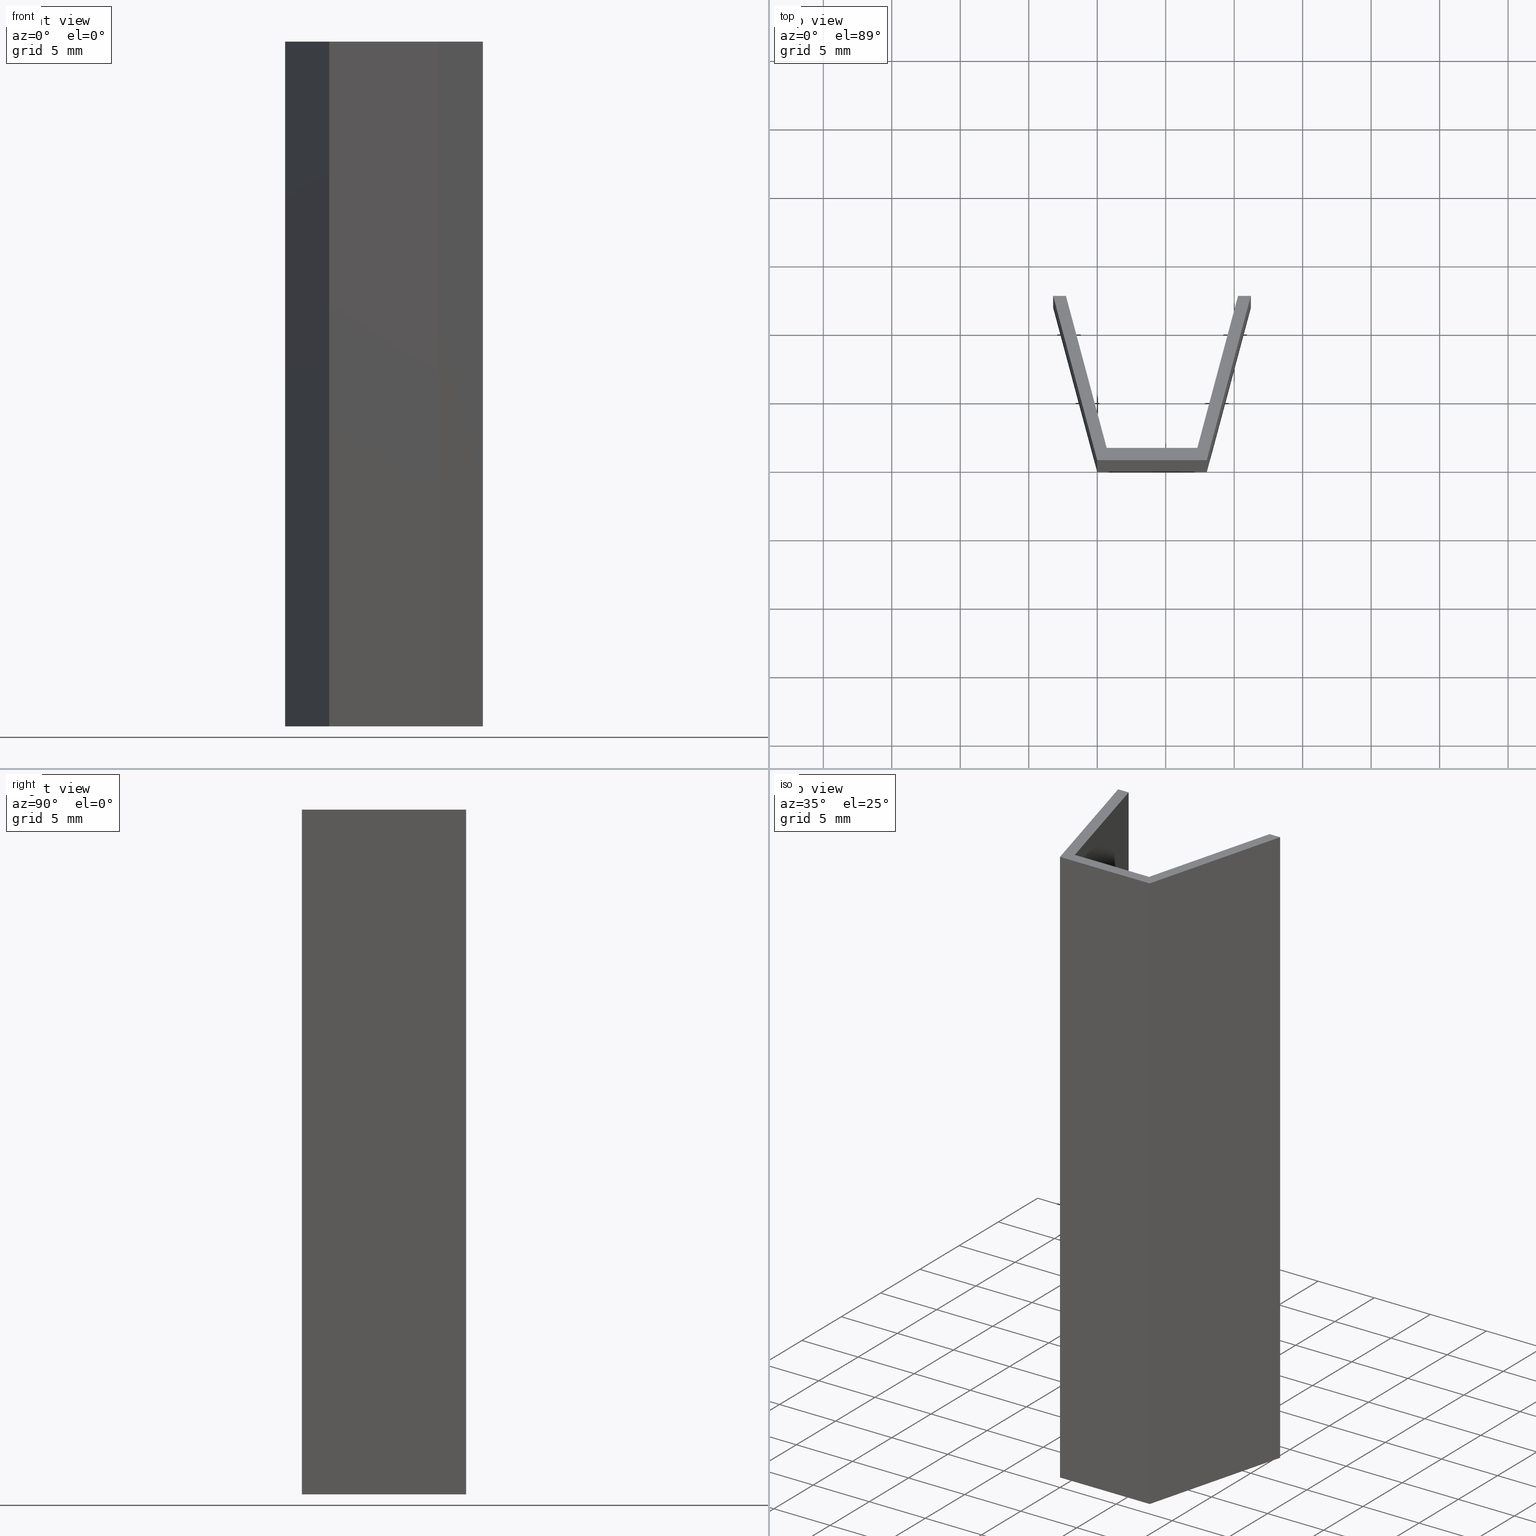
[diagram: canonical four-view strip — front | top / right | iso, engineering-drawing reading convention]
A machine part, canonical four-view strip (front | top / right | iso — engineering-drawing reading convention). The complete STEP part file that produces these views, byte-faithful:
ISO-10303-21;
HEADER;
FILE_DESCRIPTION (( 'STEP AP203' ),
    '1' );
FILE_NAME ('B39-55.STEP',
    '2018-03-28T14:56:30',
    ( 'User2' ),
    ( '' ),
    'SwSTEP 2.0',
    'SolidWorks 2007',
    '' );
FILE_SCHEMA (( 'CONFIG_CONTROL_DESIGN' ));
ENDSEC;

DATA;
#1 = EDGE_CURVE ( 'NONE', #43, #45, #317, .T. ) ;
#2 = EDGE_CURVE ( 'NONE', #29, #44, #319, .T. ) ;
#3 = EDGE_CURVE ( 'NONE', #45, #29, #321, .T. ) ;
#4 = EDGE_CURVE ( 'NONE', #27, #43, #48, .T. ) ;
#5 = EDGE_CURVE ( 'NONE', #43, #30, #50, .T. ) ;
#6 = EDGE_CURVE ( 'NONE', #25, #27, #52, .T. ) ;
#7 = EDGE_CURVE ( 'NONE', #30, #29, #54, .T. ) ;
#8 = FACE_OUTER_BOUND ( 'NONE', #302, .T. ) ;
#9 = FACE_OUTER_BOUND ( 'NONE', #281, .T. ) ;
#10 = FACE_OUTER_BOUND ( 'NONE', #125, .T. ) ;
#11 = FACE_OUTER_BOUND ( 'NONE', #292, .T. ) ;
#12 = LINE ( 'NONE', #215, #13 ) ;
#13 = VECTOR ( 'NONE', #226, 1000.000000000000000 ) ;
#14 = LINE ( 'NONE', #221, #15 ) ;
#15 = VECTOR ( 'NONE', #245, 1000.000000000000000 ) ;
#16 = LINE ( 'NONE', #229, #17 ) ;
#17 = VECTOR ( 'NONE', #224, 1000.000000000000000 ) ;
#18 = LINE ( 'NONE', #225, #19 ) ;
#19 = VECTOR ( 'NONE', #255, 1000.000000000000000 ) ;
#20 = LINE ( 'NONE', #249, #21 ) ;
#21 = VECTOR ( 'NONE', #217, 1000.000000000000100 ) ;
#22 = LINE ( 'NONE', #222, #161 ) ;
#23 = PRODUCT ( 'B39-55', 'B39-55', '', ( #71 ) ) ;
#24 = PERSON ( 'UNSPECIFIED', 'UNSPECIFIED', 'UNSPECIFIED', ('UNSPECIFIED'), ('UNSPECIFIED'), ('UNSPECIFIED') ) ;
#25 = VERTEX_POINT ( 'NONE', #148 ) ;
#26 = VERTEX_POINT ( 'NONE', #153 ) ;
#27 = VERTEX_POINT ( 'NONE', #134 ) ;
#28 = VERTEX_POINT ( 'NONE', #149 ) ;
#29 = VERTEX_POINT ( 'NONE', #150 ) ;
#30 = VERTEX_POINT ( 'NONE', #151 ) ;
#31 = CARTESIAN_POINT ( 'NONE',  ( 8.000000000000000000, -2.195599280053263200E-015, 0.0000000000000000000 ) ) ;
#32 = DIRECTION ( 'NONE',  ( 1.000000000000000000, -2.744499100066579100E-016, -0.0000000000000000000 ) ) ;
#33 = VERTEX_POINT ( 'NONE', #158 ) ;
#34 = VERTEX_POINT ( 'NONE', #143 ) ;
#35 = VERTEX_POINT ( 'NONE', #130 ) ;
#36 = VERTEX_POINT ( 'NONE', #135 ) ;
#37 = VERTEX_POINT ( 'NONE', #140 ) ;
#38 = CARTESIAN_POINT ( 'NONE',  ( 0.0000000000000000000, 0.0000000000000000000, 50.00000000000000000 ) ) ;
#39 = DIRECTION ( 'NONE',  ( -0.0000000000000000000, -0.0000000000000000000, -1.000000000000000000 ) ) ;
#40 = VERTEX_POINT ( 'NONE', #152 ) ;
#41 = DIRECTION ( 'NONE',  ( 0.2588190451025176900, 0.9659258262890690900, -0.0000000000000000000 ) ) ;
#42 = VERTEX_POINT ( 'NONE', #137 ) ;
#43 = VERTEX_POINT ( 'NONE', #138 ) ;
#44 = VERTEX_POINT ( 'NONE', #155 ) ;
#45 = VERTEX_POINT ( 'NONE', #136 ) ;
#46 = CARTESIAN_POINT ( 'NONE',  ( 11.21539030917343300, 12.00000000000000000, 0.0000000000000000000 ) ) ;
#47 = VECTOR ( 'NONE', #32, 1000.000000000000000 ) ;
#48 = LINE ( 'NONE', #160, #49 ) ;
#49 = VECTOR ( 'NONE', #159, 999.9999999999998900 ) ;
#50 = LINE ( 'NONE', #144, #51 ) ;
#51 = VECTOR ( 'NONE', #145, 1000.000000000000000 ) ;
#52 = LINE ( 'NONE', #142, #53 ) ;
#53 = VECTOR ( 'NONE', #126, 1000.000000000000000 ) ;
#54 = LINE ( 'NONE', #156, #55 ) ;
#55 = VECTOR ( 'NONE', #132, 1000.000000000000000 ) ;
#56 = FACE_OUTER_BOUND ( 'NONE', #295, .T. ) ;
#57 = FACE_OUTER_BOUND ( 'NONE', #181, .T. ) ;
#58 = FACE_OUTER_BOUND ( 'NONE', #296, .T. ) ;
#59 = FACE_OUTER_BOUND ( 'NONE', #297, .T. ) ;
#60 = FACE_OUTER_BOUND ( 'NONE', #294, .T. ) ;
#61 = FACE_OUTER_BOUND ( 'NONE', #293, .T. ) ;
#62 =( LENGTH_UNIT ( ) NAMED_UNIT ( * ) SI_UNIT ( .MILLI., .METRE. ) );
#63 = CARTESIAN_POINT ( 'NONE',  ( -3.215390309173439000, 12.00000000000000000, 0.0000000000000000000 ) ) ;
#64 = APPLICATION_CONTEXT ( 'configuration controlled 3d designs of mechanical parts and assemblies' ) ;
#65 =( NAMED_UNIT ( * ) PLANE_ANGLE_UNIT ( ) SI_UNIT ( $, .RADIAN. ) );
#66 =( NAMED_UNIT ( * ) SI_UNIT ( $, .STERADIAN. ) SOLID_ANGLE_UNIT ( ) );
#67 = PERSON_AND_ORGANIZATION_ROLE ( 'design_owner' ) ;
#68 = APPLICATION_PROTOCOL_DEFINITION ( 'international standard', 'config_control_design', 1994, #64 ) ;
#69 = CARTESIAN_POINT ( 'NONE',  ( -2.283641746804360800, 12.00000000000000000, 50.00000000000000000 ) ) ;
#70 = CARTESIAN_POINT ( 'NONE',  ( -2.283641746804360800, 12.00000000000000000, 0.0000000000000000000 ) ) ;
#71 = MECHANICAL_CONTEXT ( 'NONE', #84, 'mechanical' ) ;
#72 = APPLICATION_PROTOCOL_DEFINITION ( 'international standard', 'config_control_design', 1994, #84 ) ;
#73 = DIRECTION ( 'NONE',  ( -1.000000000000000000, 3.276123471175167400E-017, -0.0000000000000000000 ) ) ;
#74 = CARTESIAN_POINT ( 'NONE',  ( 0.6905942891810676900, 0.9000000000000000200, 50.00000000000000000 ) ) ;
#75 = DIRECTION ( 'NONE',  ( -0.0000000000000000000, -0.0000000000000000000, -1.000000000000000000 ) ) ;
#76 = CARTESIAN_POINT ( 'NONE',  ( -2.283641746804360800, 12.00000000000000000, 50.00000000000000000 ) ) ;
#77 = DIRECTION ( 'NONE',  ( -0.2588190451025180700, 0.9659258262890690900, -0.0000000000000000000 ) ) ;
#78 = DIRECTION ( 'NONE',  ( 0.0000000000000000000, 0.0000000000000000000, 1.000000000000000000 ) ) ;
#79 = DIRECTION ( 'NONE',  ( 1.000000000000000000, 0.0000000000000000000, 0.0000000000000000000 ) ) ;
#80 = CARTESIAN_POINT ( 'NONE',  ( 0.0000000000000000000, 0.0000000000000000000, 0.0000000000000000000 ) ) ;
#81 = DIRECTION ( 'NONE',  ( -0.2588190451025180700, 0.9659258262890690900, -0.0000000000000000000 ) ) ;
#82 = DIRECTION ( 'NONE',  ( -1.000000000000000000, 3.276123471175167400E-017, -0.0000000000000000000 ) ) ;
#83 = DIRECTION ( 'NONE',  ( -0.0000000000000000000, -0.0000000000000000000, -1.000000000000000000 ) ) ;
#84 = APPLICATION_CONTEXT ( 'configuration controlled 3d designs of mechanical parts and assemblies' ) ;
#85 = CARTESIAN_POINT ( 'NONE',  ( 0.6905942891810676900, 0.9000000000000000200, 0.0000000000000000000 ) ) ;
#86 = CARTESIAN_POINT ( 'NONE',  ( 0.0000000000000000000, 0.0000000000000000000, 0.0000000000000000000 ) ) ;
#87 = CARTESIAN_POINT ( 'NONE',  ( 0.6905942891810676900, 0.9000000000000000200, 50.00000000000000000 ) ) ;
#88 = DIRECTION ( 'NONE',  ( -1.000000000000000000, -0.0000000000000000000, -0.0000000000000000000 ) ) ;
#89 = CARTESIAN_POINT ( 'NONE',  ( -3.215390309173439000, 12.00000000000000000, 50.00000000000000000 ) ) ;
#90 = DIRECTION ( 'NONE',  ( -0.0000000000000000000, -0.0000000000000000000, -1.000000000000000000 ) ) ;
#91 = DIRECTION ( 'NONE',  ( 0.2588190451025183000, -0.9659258262890690900, -0.0000000000000000000 ) ) ;
#92 = ORIENTED_EDGE ( 'NONE', *, *, #347, .T. ) ;
#93 = ORIENTED_EDGE ( 'NONE', *, *, #356, .T. ) ;
#94 = ORIENTED_EDGE ( 'NONE', *, *, #358, .F. ) ;
#95 = ORIENTED_EDGE ( 'NONE', *, *, #357, .F. ) ;
#96 = ORIENTED_EDGE ( 'NONE', *, *, #354, .T. ) ;
#97 = ORIENTED_EDGE ( 'NONE', *, *, #359, .T. ) ;
#98 = ORIENTED_EDGE ( 'NONE', *, *, #360, .F. ) ;
#99 = ORIENTED_EDGE ( 'NONE', *, *, #361, .F. ) ;
#100 = ORIENTED_EDGE ( 'NONE', *, *, #358, .T. ) ;
#101 = ORIENTED_EDGE ( 'NONE', *, *, #363, .T. ) ;
#102 = PERSON_AND_ORGANIZATION_ROLE ( 'classification_officer' ) ;
#103 = DATE_TIME_ROLE ( 'creation_date' ) ;
#104 = DATE_TIME_ROLE ( 'classification_date' ) ;
#105 = APPROVAL_STATUS ( 'not_yet_approved' ) ;
#106 = SECURITY_CLASSIFICATION_LEVEL ( 'unclassified' ) ;
#107 = APPROVAL_STATUS ( 'not_yet_approved' ) ;
#108 = PERSON_AND_ORGANIZATION_ROLE ( 'design_supplier' ) ;
#109 = APPROVAL_ROLE ( '' ) ;
#110 = APPROVAL_STATUS ( 'not_yet_approved' ) ;
#111 = APPROVAL_ROLE ( '' ) ;
#112 = PERSON_AND_ORGANIZATION_ROLE ( 'creator' ) ;
#113 = PERSON_AND_ORGANIZATION_ROLE ( 'creator' ) ;
#114 = APPROVAL_ROLE ( '' ) ;
#115 = ORIENTED_EDGE ( 'NONE', *, *, #7, .T. ) ;
#116 = ORIENTED_EDGE ( 'NONE', *, *, #349, .F. ) ;
#117 = ORIENTED_EDGE ( 'NONE', *, *, #360, .T. ) ;
#118 = ORIENTED_EDGE ( 'NONE', *, *, #364, .T. ) ;
#119 = ORIENTED_EDGE ( 'NONE', *, *, #1, .F. ) ;
#120 = ORIENTED_EDGE ( 'NONE', *, *, #4, .F. ) ;
#121 = ORIENTED_EDGE ( 'NONE', *, *, #362, .T. ) ;
#122 = ORIENTED_EDGE ( 'NONE', *, *, #5, .T. ) ;
#123 = ORIENTED_EDGE ( 'NONE', *, *, #349, .T. ) ;
#124 = ORIENTED_EDGE ( 'NONE', *, *, #348, .T. ) ;
#125 = EDGE_LOOP ( 'NONE', ( #101, #282, #283, #117 ) ) ;
#126 = DIRECTION ( 'NONE',  ( -1.000000000000000000, -0.0000000000000000000, -0.0000000000000000000 ) ) ;
#127 = DIRECTION ( 'NONE',  ( -1.000000000000000000, 2.744499100066579100E-016, 0.0000000000000000000 ) ) ;
#128 = CARTESIAN_POINT ( 'NONE',  ( 11.21539030917343300, 12.00000000000000000, 50.00000000000000000 ) ) ;
#129 = PLANE ( 'NONE',  #365 ) ;
#130 = CARTESIAN_POINT ( 'NONE',  ( 11.21539030917343300, 12.00000000000000000, 50.00000000000000000 ) ) ;
#131 = DIRECTION ( 'NONE',  ( -0.9659258262890692000, 0.2588190451025176900, 0.0000000000000000000 ) ) ;
#132 = DIRECTION ( 'NONE',  ( -0.0000000000000000000, -0.0000000000000000000, -1.000000000000000000 ) ) ;
#133 = PLANE ( 'NONE',  #367 ) ;
#134 = CARTESIAN_POINT ( 'NONE',  ( -3.215390309173439000, 12.00000000000000000, 50.00000000000000000 ) ) ;
#135 = CARTESIAN_POINT ( 'NONE',  ( -2.283641746804360800, 12.00000000000000000, 0.0000000000000000000 ) ) ;
#136 = CARTESIAN_POINT ( 'NONE',  ( 0.0000000000000000000, 0.0000000000000000000, 0.0000000000000000000 ) ) ;
#137 = CARTESIAN_POINT ( 'NONE',  ( 7.309405710818933400, 0.8999999999999998000, 50.00000000000000000 ) ) ;
#138 = CARTESIAN_POINT ( 'NONE',  ( 0.0000000000000000000, 0.0000000000000000000, 50.00000000000000000 ) ) ;
#139 = DIRECTION ( 'NONE',  ( -0.2588190451025176300, -0.9659258262890690900, 0.0000000000000000000 ) ) ;
#140 = CARTESIAN_POINT ( 'NONE',  ( 7.309405710818933400, 0.8999999999999998000, 0.0000000000000000000 ) ) ;
#141 = PLANE ( 'NONE',  #366 ) ;
#142 = CARTESIAN_POINT ( 'NONE',  ( -3.215390309173439000, 12.00000000000000000, 50.00000000000000000 ) ) ;
#143 = CARTESIAN_POINT ( 'NONE',  ( 10.28364174680436000, 12.00000000000000000, 50.00000000000000000 ) ) ;
#144 = CARTESIAN_POINT ( 'NONE',  ( 8.000000000000000000, -2.195599280053263200E-015, 50.00000000000000000 ) ) ;
#145 = DIRECTION ( 'NONE',  ( 1.000000000000000000, -2.744499100066579100E-016, -0.0000000000000000000 ) ) ;
#146 = CARTESIAN_POINT ( 'NONE',  ( 10.28364174680436000, 12.00000000000000000, 50.00000000000000000 ) ) ;
#147 = CARTESIAN_POINT ( 'NONE',  ( 8.000000000000000000, -2.195599280053263200E-015, 50.00000000000000000 ) ) ;
#148 = CARTESIAN_POINT ( 'NONE',  ( -2.283641746804360800, 12.00000000000000000, 50.00000000000000000 ) ) ;
#149 = CARTESIAN_POINT ( 'NONE',  ( 0.6905942891810676900, 0.9000000000000000200, 0.0000000000000000000 ) ) ;
#150 = CARTESIAN_POINT ( 'NONE',  ( 8.000000000000000000, -2.195599280053263200E-015, 0.0000000000000000000 ) ) ;
#151 = CARTESIAN_POINT ( 'NONE',  ( 8.000000000000000000, -2.195599280053263200E-015, 50.00000000000000000 ) ) ;
#152 = CARTESIAN_POINT ( 'NONE',  ( -3.215390309173439000, 12.00000000000000000, 0.0000000000000000000 ) ) ;
#153 = CARTESIAN_POINT ( 'NONE',  ( 0.6905942891810676900, 0.9000000000000000200, 50.00000000000000000 ) ) ;
#154 = DIRECTION ( 'NONE',  ( 2.744499100066579100E-016, 1.000000000000000000, -0.0000000000000000000 ) ) ;
#155 = CARTESIAN_POINT ( 'NONE',  ( 11.21539030917343300, 12.00000000000000000, 0.0000000000000000000 ) ) ;
#156 = CARTESIAN_POINT ( 'NONE',  ( 8.000000000000000000, -2.195599280053263200E-015, 50.00000000000000000 ) ) ;
#157 = DIRECTION ( 'NONE',  ( 0.0000000000000000000, -1.000000000000000000, 0.0000000000000000000 ) ) ;
#158 = CARTESIAN_POINT ( 'NONE',  ( 10.28364174680436000, 12.00000000000000000, 0.0000000000000000000 ) ) ;
#159 = DIRECTION ( 'NONE',  ( 0.2588190451025183000, -0.9659258262890690900, -0.0000000000000000000 ) ) ;
#160 = CARTESIAN_POINT ( 'NONE',  ( 0.0000000000000000000, 0.0000000000000000000, 50.00000000000000000 ) ) ;
#161 = VECTOR ( 'NONE', #214, 999.9999999999998900 ) ;
#162 = LINE ( 'NONE', #240, #163 ) ;
#163 = VECTOR ( 'NONE', #228, 1000.000000000000000 ) ;
#164 = LINE ( 'NONE', #231, #165 ) ;
#165 = VECTOR ( 'NONE', #223, 999.9999999999998900 ) ;
#166 = LINE ( 'NONE', #85, #167 ) ;
#167 = VECTOR ( 'NONE', #82, 1000.000000000000000 ) ;
#168 = LINE ( 'NONE', #74, #169 ) ;
#169 = VECTOR ( 'NONE', #73, 1000.000000000000000 ) ;
#170 = LINE ( 'NONE', #87, #171 ) ;
#171 = VECTOR ( 'NONE', #90, 1000.000000000000000 ) ;
#172 = LINE ( 'NONE', #70, #173 ) ;
#173 = VECTOR ( 'NONE', #77, 1000.000000000000100 ) ;
#174 = LINE ( 'NONE', #69, #175 ) ;
#175 = VECTOR ( 'NONE', #75, 1000.000000000000000 ) ;
#176 = LINE ( 'NONE', #76, #177 ) ;
#177 = VECTOR ( 'NONE', #81, 1000.000000000000100 ) ;
#178 = LINE ( 'NONE', #89, #179 ) ;
#179 = VECTOR ( 'NONE', #83, 1000.000000000000000 ) ;
#180 = LINE ( 'NONE', #63, #303 ) ;
#181 = EDGE_LOOP ( 'NONE', ( #314, #291, #312, #313 ) ) ;
#182 = PERSON_AND_ORGANIZATION ( #24, #308 ) ;
#183 = COORDINATED_UNIVERSAL_TIME_OFFSET ( 3, 0, .BEHIND. ) ;
#184 = LOCAL_TIME ( 11, 56, 30.00000000000000000, #183 ) ;
#185 = CALENDAR_DATE ( 2018, 28, 3 ) ;
#186 = DATE_AND_TIME ( #185, #184 ) ;
#187 = PERSON_AND_ORGANIZATION ( #24, #308 ) ;
#188 = APPROVAL_PERSON_ORGANIZATION ( #187, #338, #109 ) ;
#189 = COORDINATED_UNIVERSAL_TIME_OFFSET ( 3, 0, .BEHIND. ) ;
#190 = LOCAL_TIME ( 11, 56, 30.00000000000000000, #189 ) ;
#191 = CALENDAR_DATE ( 2018, 28, 3 ) ;
#192 = DATE_AND_TIME ( #191, #190 ) ;
#193 = APPROVAL_DATE_TIME ( #192, #338 ) ;
#194 = COORDINATED_UNIVERSAL_TIME_OFFSET ( 3, 0, .BEHIND. ) ;
#195 = LOCAL_TIME ( 11, 56, 30.00000000000000000, #194 ) ;
#196 = CALENDAR_DATE ( 2018, 28, 3 ) ;
#197 = DATE_AND_TIME ( #196, #195 ) ;
#198 = APPROVAL_DATE_TIME ( #197, #332 ) ;
#199 = PERSON_AND_ORGANIZATION ( #24, #308 ) ;
#200 = COORDINATED_UNIVERSAL_TIME_OFFSET ( 3, 0, .BEHIND. ) ;
#201 = LOCAL_TIME ( 11, 56, 30.00000000000000000, #200 ) ;
#202 = CALENDAR_DATE ( 2018, 28, 3 ) ;
#203 = DATE_AND_TIME ( #202, #201 ) ;
#204 = PERSON_AND_ORGANIZATION ( #24, #308 ) ;
#205 = APPROVAL_PERSON_ORGANIZATION ( #204, #330, #114 ) ;
#206 = COORDINATED_UNIVERSAL_TIME_OFFSET ( 3, 0, .BEHIND. ) ;
#207 = LOCAL_TIME ( 11, 56, 30.00000000000000000, #206 ) ;
#208 = CALENDAR_DATE ( 2018, 28, 3 ) ;
#209 = DATE_AND_TIME ( #208, #207 ) ;
#210 = APPROVAL_DATE_TIME ( #209, #330 ) ;
#211 = PERSON_AND_ORGANIZATION ( #24, #308 ) ;
#212 = PERSON_AND_ORGANIZATION ( #24, #308 ) ;
#213 = SECURITY_CLASSIFICATION ( '', '', #106 ) ;
#214 = DIRECTION ( 'NONE',  ( -0.2588190451025178500, -0.9659258262890692000, -0.0000000000000000000 ) ) ;
#215 = CARTESIAN_POINT ( 'NONE',  ( 11.21539030917343300, 12.00000000000000000, 50.00000000000000000 ) ) ;
#216 = PLANE ( 'NONE',  #351 ) ;
#217 = DIRECTION ( 'NONE',  ( 0.2588190451025176900, 0.9659258262890690900, -0.0000000000000000000 ) ) ;
#218 = CARTESIAN_POINT ( 'NONE',  ( 7.309405710818933400, 0.8999999999999998000, 50.00000000000000000 ) ) ;
#219 = DIRECTION ( 'NONE',  ( 0.0000000000000000000, -1.000000000000000000, 0.0000000000000000000 ) ) ;
#220 = DIRECTION ( 'NONE',  ( 0.0000000000000000000, 0.0000000000000000000, 1.000000000000000000 ) ) ;
#221 = CARTESIAN_POINT ( 'NONE',  ( 10.28364174680436000, 12.00000000000000000, 0.0000000000000000000 ) ) ;
#222 = CARTESIAN_POINT ( 'NONE',  ( 7.309405710818933400, 0.8999999999999998000, 0.0000000000000000000 ) ) ;
#223 = DIRECTION ( 'NONE',  ( -0.2588190451025178500, -0.9659258262890692000, -0.0000000000000000000 ) ) ;
#224 = DIRECTION ( 'NONE',  ( -0.0000000000000000000, -0.0000000000000000000, -1.000000000000000000 ) ) ;
#225 = CARTESIAN_POINT ( 'NONE',  ( 10.28364174680436000, 12.00000000000000000, 50.00000000000000000 ) ) ;
#226 = DIRECTION ( 'NONE',  ( -0.0000000000000000000, -0.0000000000000000000, -1.000000000000000000 ) ) ;
#227 = PLANE ( 'NONE',  #369 ) ;
#228 = DIRECTION ( 'NONE',  ( -0.0000000000000000000, -0.0000000000000000000, -1.000000000000000000 ) ) ;
#229 = CARTESIAN_POINT ( 'NONE',  ( 10.28364174680436000, 12.00000000000000000, 50.00000000000000000 ) ) ;
#230 = DIRECTION ( 'NONE',  ( -3.276123471175167400E-017, -1.000000000000000000, 0.0000000000000000000 ) ) ;
#231 = CARTESIAN_POINT ( 'NONE',  ( 7.309405710818933400, 0.8999999999999998000, 50.00000000000000000 ) ) ;
#232 = CARTESIAN_POINT ( 'NONE',  ( 0.0000000000000000000, 0.0000000000000000000, 50.00000000000000000 ) ) ;
#233 = DIRECTION ( 'NONE',  ( 0.9659258262890690900, -0.2588190451025178500, 0.0000000000000000000 ) ) ;
#234 = DIRECTION ( 'NONE',  ( 1.000000000000000000, 0.0000000000000000000, -0.0000000000000000000 ) ) ;
#235 = CARTESIAN_POINT ( 'NONE',  ( -3.215390309173439000, 12.00000000000000000, 50.00000000000000000 ) ) ;
#236 = DIRECTION ( 'NONE',  ( 0.2588190451025178500, 0.9659258262890690900, 0.0000000000000000000 ) ) ;
#237 = PLANE ( 'NONE',  #368 ) ;
#238 = PLANE ( 'NONE',  #339 ) ;
#239 = DIRECTION ( 'NONE',  ( -0.9659258262890690900, -0.2588190451025180200, 0.0000000000000000000 ) ) ;
#240 = CARTESIAN_POINT ( 'NONE',  ( 7.309405710818933400, 0.8999999999999998000, 50.00000000000000000 ) ) ;
#241 = DIRECTION ( 'NONE',  ( 0.2588190451025180200, -0.9659258262890690900, 0.0000000000000000000 ) ) ;
#242 = CARTESIAN_POINT ( 'NONE',  ( 8.000000000000000000, 1.734723475976807100E-015, 0.0000000000000000000 ) ) ;
#243 = DIRECTION ( 'NONE',  ( -0.2588190451025182400, 0.9659258262890689800, 0.0000000000000000000 ) ) ;
#244 = CARTESIAN_POINT ( 'NONE',  ( 8.000000000000000000, 1.734723475976807100E-015, 50.00000000000000000 ) ) ;
#245 = DIRECTION ( 'NONE',  ( -1.000000000000000000, -0.0000000000000000000, -0.0000000000000000000 ) ) ;
#246 = DIRECTION ( 'NONE',  ( 0.0000000000000000000, 0.0000000000000000000, 1.000000000000000000 ) ) ;
#247 = PLANE ( 'NONE',  #350 ) ;
#248 = DIRECTION ( 'NONE',  ( 0.9659258262890689800, 0.2588190451025182400, -0.0000000000000000000 ) ) ;
#249 = CARTESIAN_POINT ( 'NONE',  ( 11.21539030917343300, 12.00000000000000000, 50.00000000000000000 ) ) ;
#250 = DIRECTION ( 'NONE',  ( 0.0000000000000000000, -0.0000000000000000000, -1.000000000000000000 ) ) ;
#251 = CARTESIAN_POINT ( 'NONE',  ( -2.283641746804360800, 12.00000000000000000, 50.00000000000000000 ) ) ;
#252 = DIRECTION ( 'NONE',  ( 1.000000000000000000, -3.276123471175167400E-017, 0.0000000000000000000 ) ) ;
#253 = CARTESIAN_POINT ( 'NONE',  ( 0.6905942891810676900, 0.9000000000000000200, 50.00000000000000000 ) ) ;
#254 = PLANE ( 'NONE',  #352 ) ;
#255 = DIRECTION ( 'NONE',  ( -1.000000000000000000, -0.0000000000000000000, -0.0000000000000000000 ) ) ;
#256 = DIRECTION ( 'NONE',  ( 1.000000000000000000, 0.0000000000000000000, -0.0000000000000000000 ) ) ;
#257 = DIRECTION ( 'NONE',  ( 0.0000000000000000000, -0.0000000000000000000, -1.000000000000000000 ) ) ;
#258 = PLANE ( 'NONE',  #329 ) ;
#259 = DESIGN_CONTEXT ( 'detailed design', #64, 'design' ) ;
#260 = PRODUCT_DEFINITION_SHAPE ( 'NONE', 'NONE',  #342 ) ;
#261 = MANIFOLD_SOLID_BREP ( 'NONE', #290 ) ;
#262 = ADVANCED_FACE ( 'NONE', ( #56 ), #129, .F. ) ;
#263 = ADVANCED_FACE ( 'NONE', ( #57 ), #141, .F. ) ;
#264 = ADVANCED_FACE ( 'NONE', ( #58 ), #133, .F. ) ;
#265 = ADVANCED_FACE ( 'NONE', ( #59 ), #237, .F. ) ;
#266 = ADVANCED_FACE ( 'NONE', ( #60 ), #227, .F. ) ;
#267 = ADVANCED_FACE ( 'NONE', ( #61 ), #216, .T. ) ;
#268 = ADVANCED_FACE ( 'NONE', ( #8 ), #247, .F. ) ;
#269 = ADVANCED_FACE ( 'NONE', ( #9 ), #254, .F. ) ;
#270 = UNCERTAINTY_MEASURE_WITH_UNIT (LENGTH_MEASURE( 1.000000000000000100E-005 ), #62, 'distance_accuracy_value', 'NONE');
#271 = ORIENTED_EDGE ( 'NONE', *, *, #355, .T. ) ;
#272 = ORIENTED_EDGE ( 'NONE', *, *, #357, .T. ) ;
#273 = ORIENTED_EDGE ( 'NONE', *, *, #361, .T. ) ;
#274 = ORIENTED_EDGE ( 'NONE', *, *, #6, .T. ) ;
#275 = ORIENTED_EDGE ( 'NONE', *, *, #4, .T. ) ;
#276 = ORIENTED_EDGE ( 'NONE', *, *, #3, .F. ) ;
#277 = ORIENTED_EDGE ( 'NONE', *, *, #364, .F. ) ;
#278 = ORIENTED_EDGE ( 'NONE', *, *, #353, .T. ) ;
#279 = ORIENTED_EDGE ( 'NONE', *, *, #354, .F. ) ;
#280 = ORIENTED_EDGE ( 'NONE', *, *, #355, .F. ) ;
#281 = EDGE_LOOP ( 'NONE', ( #118, #119, #120, #121 ) ) ;
#282 = ORIENTED_EDGE ( 'NONE', *, *, #362, .F. ) ;
#283 = ORIENTED_EDGE ( 'NONE', *, *, #6, .F. ) ;
#284 = ORIENTED_EDGE ( 'NONE', *, *, #363, .F. ) ;
#285 = ORIENTED_EDGE ( 'NONE', *, *, #359, .F. ) ;
#286 = ORIENTED_EDGE ( 'NONE', *, *, #356, .F. ) ;
#287 = ORIENTED_EDGE ( 'NONE', *, *, #353, .F. ) ;
#288 = ORIENTED_EDGE ( 'NONE', *, *, #346, .F. ) ;
#289 = ORIENTED_EDGE ( 'NONE', *, *, #2, .F. ) ;
#290 = CLOSED_SHELL ( 'NONE', ( #263, #262, #264, #265, #266, #323, #322, #269, #267, #268 ) ) ;
#291 = ORIENTED_EDGE ( 'NONE', *, *, #7, .F. ) ;
#292 = EDGE_LOOP ( 'NONE', ( #97, #98, #99, #100 ) ) ;
#293 = EDGE_LOOP ( 'NONE', ( #122, #123, #124, #271, #272, #273, #274, #275 ) ) ;
#294 = EDGE_LOOP ( 'NONE', ( #93, #94, #95, #96 ) ) ;
#295 = EDGE_LOOP ( 'NONE', ( #316, #315, #116, #115 ) ) ;
#296 = EDGE_LOOP ( 'NONE', ( #299, #301, #300, #298 ) ) ;
#297 = EDGE_LOOP ( 'NONE', ( #278, #279, #280, #92 ) ) ;
#298 = ORIENTED_EDGE ( 'NONE', *, *, #345, .T. ) ;
#299 = ORIENTED_EDGE ( 'NONE', *, *, #346, .T. ) ;
#300 = ORIENTED_EDGE ( 'NONE', *, *, #348, .F. ) ;
#301 = ORIENTED_EDGE ( 'NONE', *, *, #347, .F. ) ;
#302 = EDGE_LOOP ( 'NONE', ( #276, #277, #284, #285, #286, #287, #288, #289 ) ) ;
#303 = VECTOR ( 'NONE', #88, 1000.000000000000000 ) ;
#304 = LINE ( 'NONE', #86, #305 ) ;
#305 = VECTOR ( 'NONE', #91, 999.9999999999998900 ) ;
#306 =( GEOMETRIC_REPRESENTATION_CONTEXT ( 3 ) GLOBAL_UNCERTAINTY_ASSIGNED_CONTEXT ( ( #270 ) ) GLOBAL_UNIT_ASSIGNED_CONTEXT ( ( #62, #65, #66 ) ) REPRESENTATION_CONTEXT ( 'NONE', 'WORKASPACE' ) );
#307 = SHAPE_DEFINITION_REPRESENTATION ( #260, #324 ) ;
#308 = ORGANIZATION ( 'UNSPECIFIED', 'UNSPECIFIED', '' ) ;
#309 = PERSON_AND_ORGANIZATION ( #24, #308 ) ;
#310 = PERSON_AND_ORGANIZATION ( #24, #308 ) ;
#311 = APPROVAL_PERSON_ORGANIZATION ( #310, #332, #111 ) ;
#312 = ORIENTED_EDGE ( 'NONE', *, *, #5, .F. ) ;
#313 = ORIENTED_EDGE ( 'NONE', *, *, #1, .T. ) ;
#314 = ORIENTED_EDGE ( 'NONE', *, *, #3, .T. ) ;
#315 = ORIENTED_EDGE ( 'NONE', *, *, #345, .F. ) ;
#316 = ORIENTED_EDGE ( 'NONE', *, *, #2, .T. ) ;
#317 = LINE ( 'NONE', #38, #318 ) ;
#318 = VECTOR ( 'NONE', #39, 1000.000000000000000 ) ;
#319 = LINE ( 'NONE', #46, #320 ) ;
#320 = VECTOR ( 'NONE', #41, 1000.000000000000100 ) ;
#321 = LINE ( 'NONE', #31, #47 ) ;
#322 = ADVANCED_FACE ( 'NONE', ( #10 ), #258, .F. ) ;
#323 = ADVANCED_FACE ( 'NONE', ( #11 ), #238, .F. ) ;
#324 = ADVANCED_BREP_SHAPE_REPRESENTATION ( 'B39-55', ( #261, #327 ), #306 ) ;
#325 = CC_DESIGN_DATE_AND_TIME_ASSIGNMENT ( #203, #103, ( #342 ) ) ;
#326 = CC_DESIGN_PERSON_AND_ORGANIZATION_ASSIGNMENT ( #309, #67, ( #23 ) ) ;
#327 = AXIS2_PLACEMENT_3D ( 'NONE', #80, #78, #79 ) ;
#328 = CC_DESIGN_PERSON_AND_ORGANIZATION_ASSIGNMENT ( #182, #102, ( #213 ) ) ;
#329 = AXIS2_PLACEMENT_3D ( 'NONE', #235, #219, #250 ) ;
#330 = APPROVAL ( #105, 'UNSPECIFIED' ) ;
#331 = CC_DESIGN_PERSON_AND_ORGANIZATION_ASSIGNMENT ( #199, #112, ( #342 ) ) ;
#332 = APPROVAL ( #107, 'UNSPECIFIED' ) ;
#333 = CC_DESIGN_APPROVAL ( #330, ( #341 ) ) ;
#334 = CC_DESIGN_DATE_AND_TIME_ASSIGNMENT ( #186, #104, ( #213 ) ) ;
#335 = PRODUCT_RELATED_PRODUCT_CATEGORY ( 'detail', '', ( #23 ) ) ;
#336 = CC_DESIGN_APPROVAL ( #338, ( #213 ) ) ;
#337 = CC_DESIGN_SECURITY_CLASSIFICATION ( #213, ( #341 ) ) ;
#338 = APPROVAL ( #110, 'UNSPECIFIED' ) ;
#339 = AXIS2_PLACEMENT_3D ( 'NONE', #251, #239, #241 ) ;
#340 = CC_DESIGN_APPROVAL ( #332, ( #342 ) ) ;
#341 = PRODUCT_DEFINITION_FORMATION_WITH_SPECIFIED_SOURCE ( 'ANY', '', #23, .NOT_KNOWN. ) ;
#342 = PRODUCT_DEFINITION ( 'UNKNOWN', '', #341, #259 ) ;
#343 = CC_DESIGN_PERSON_AND_ORGANIZATION_ASSIGNMENT ( #211, #113, ( #341 ) ) ;
#344 = CC_DESIGN_PERSON_AND_ORGANIZATION_ASSIGNMENT ( #212, #108, ( #341 ) ) ;
#345 = EDGE_CURVE ( 'NONE', #35, #44, #12, .T. ) ;
#346 = EDGE_CURVE ( 'NONE', #44, #33, #14, .T. ) ;
#347 = EDGE_CURVE ( 'NONE', #34, #33, #16, .T. ) ;
#348 = EDGE_CURVE ( 'NONE', #35, #34, #18, .T. ) ;
#349 = EDGE_CURVE ( 'NONE', #30, #35, #20, .T. ) ;
#350 = AXIS2_PLACEMENT_3D ( 'NONE', #242, #246, #256 ) ;
#351 = AXIS2_PLACEMENT_3D ( 'NONE', #244, #220, #234 ) ;
#352 = AXIS2_PLACEMENT_3D ( 'NONE', #232, #248, #243 ) ;
#353 = EDGE_CURVE ( 'NONE', #33, #37, #22, .T. ) ;
#354 = EDGE_CURVE ( 'NONE', #42, #37, #162, .T. ) ;
#355 = EDGE_CURVE ( 'NONE', #34, #42, #164, .T. ) ;
#356 = EDGE_CURVE ( 'NONE', #37, #28, #166, .T. ) ;
#357 = EDGE_CURVE ( 'NONE', #42, #26, #168, .T. ) ;
#358 = EDGE_CURVE ( 'NONE', #26, #28, #170, .T. ) ;
#359 = EDGE_CURVE ( 'NONE', #28, #36, #172, .T. ) ;
#360 = EDGE_CURVE ( 'NONE', #25, #36, #174, .T. ) ;
#361 = EDGE_CURVE ( 'NONE', #26, #25, #176, .T. ) ;
#362 = EDGE_CURVE ( 'NONE', #27, #40, #178, .T. ) ;
#363 = EDGE_CURVE ( 'NONE', #36, #40, #180, .T. ) ;
#364 = EDGE_CURVE ( 'NONE', #40, #45, #304, .T. ) ;
#365 = AXIS2_PLACEMENT_3D ( 'NONE', #128, #131, #139 ) ;
#366 = AXIS2_PLACEMENT_3D ( 'NONE', #147, #154, #127 ) ;
#367 = AXIS2_PLACEMENT_3D ( 'NONE', #146, #157, #257 ) ;
#368 = AXIS2_PLACEMENT_3D ( 'NONE', #218, #233, #236 ) ;
#369 = AXIS2_PLACEMENT_3D ( 'NONE', #253, #230, #252 ) ;
ENDSEC;
END-ISO-10303-21;
